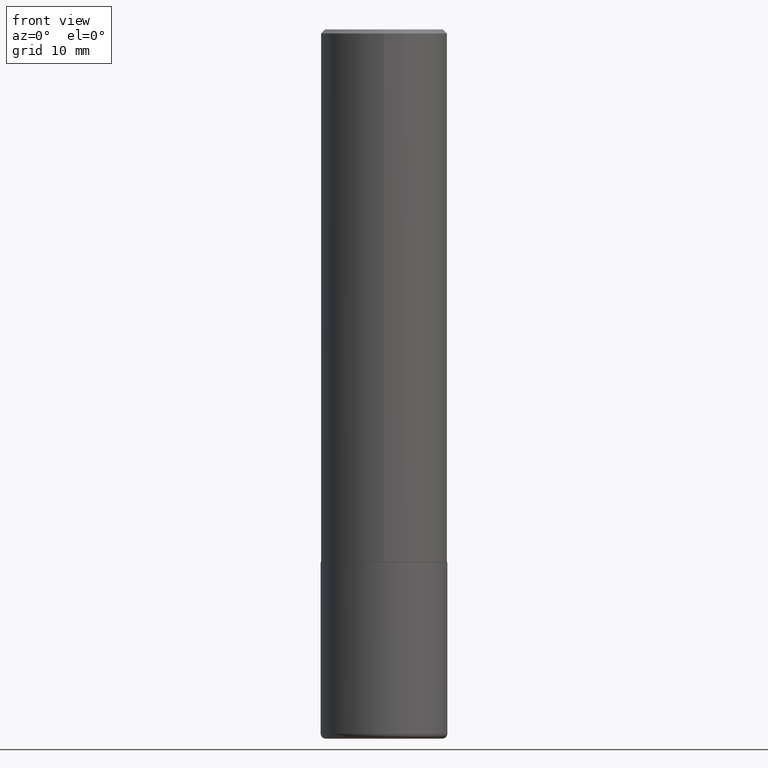
[diagram: clean part render]
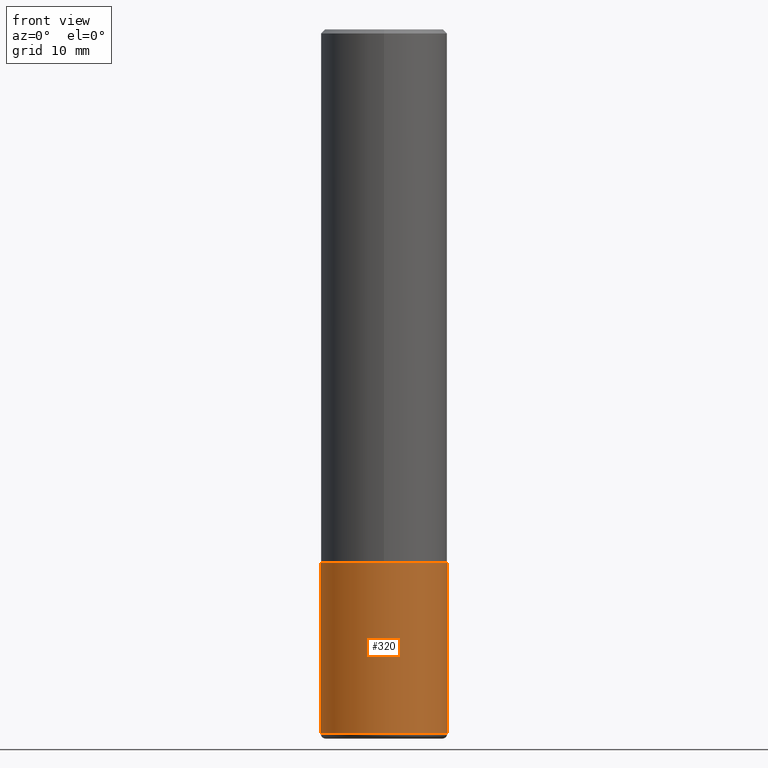
[diagram: same view with one face highlighted and labeled with its STEP entity id]
A machine part, front view. The second image highlights one B-rep face of the part: STEP entity #320.
In plain terms, the highlighted cylindrical surface (partial cylindrical patch) has radius 7.9375 mm, axis along (-0, 0, 1).
Its self-contained STEP definition (entity closure, byte-faithful):
#8 = AXIS2_PLACEMENT_3D ( 'NONE', #265, #163, #38 ) ;
#9 = FACE_OUTER_BOUND ( 'NONE', #12, .T. ) ;
#12 = EDGE_LOOP ( 'NONE', ( #141, #329, #174, #242 ) ) ;
#13 = VECTOR ( 'NONE', #416, 39.37007874015748143 ) ;
#15 = VERTEX_POINT ( 'NONE', #120 ) ;
#38 = DIRECTION ( 'NONE',  ( 1.000000000000000000, -6.982962677686269077E-15, 0.000000000000000000 ) ) ;
#53 = CIRCLE ( 'NONE', #8, 0.3125000000000000000 ) ;
#59 = EDGE_CURVE ( 'NONE', #15, #181, #286, .T. ) ;
#88 = CARTESIAN_POINT ( 'NONE',  ( 8.498004101493349225E-29, -1.213289765247992785E-14, -3.474999999999999201 ) ) ;
#104 = CARTESIAN_POINT ( 'NONE',  ( -0.3125000000000000000, -8.437300737568386669E-15, -2.629999999999999893 ) ) ;
#110 = VECTOR ( 'NONE', #390, 39.37007874015748143 ) ;
#119 = EDGE_CURVE ( 'NONE', #283, #15, #388, .T. ) ;
#120 = CARTESIAN_POINT ( 'NONE',  ( 0.3124999999999997224, -1.431507348925688462E-14, -3.474999999999999201 ) ) ;
#121 = DIRECTION ( 'NONE',  ( -2.445468806185136597E-29, 3.491481338843145583E-15, 1.000000000000000000 ) ) ;
#129 = CARTESIAN_POINT ( 'NONE',  ( 0.3125000000000000000, -2.182175836776958347E-15, 1.523805242436230075E-29 ) ) ;
#141 = ORIENTED_EDGE ( 'NONE', *, *, #258, .F. ) ;
#162 = AXIS2_PLACEMENT_3D ( 'NONE', #232, #165, #234 ) ;
#163 = DIRECTION ( 'NONE',  ( -2.445468806185136597E-29, 3.491481338843145583E-15, 1.000000000000000000 ) ) ;
#165 = DIRECTION ( 'NONE',  ( -2.445468806185136597E-29, 3.491481338843145583E-15, 1.000000000000000000 ) ) ;
#174 = ORIENTED_EDGE ( 'NONE', *, *, #59, .T. ) ;
#175 = AXIS2_PLACEMENT_3D ( 'NONE', #88, #121, #322 ) ;
#181 = VERTEX_POINT ( 'NONE', #250 ) ;
#200 = CARTESIAN_POINT ( 'NONE',  ( -0.3124999999999997224, -9.912451603229616350E-15, -3.474999999999999201 ) ) ;
#232 = CARTESIAN_POINT ( 'NONE',  ( 0.000000000000000000, 0.000000000000000000, 0.000000000000000000 ) ) ;
#234 = DIRECTION ( 'NONE',  ( 1.000000000000000000, -6.982962677686266711E-15, 4.876176775795936353E-29 ) ) ;
#242 = ORIENTED_EDGE ( 'NONE', *, *, #243, .F. ) ;
#243 = EDGE_CURVE ( 'NONE', #372, #181, #53, .T. ) ;
#250 = CARTESIAN_POINT ( 'NONE',  ( 0.3125000000000000000, -1.136477175793443157E-14, -2.629999999999999893 ) ) ;
#258 = EDGE_CURVE ( 'NONE', #283, #372, #393, .T. ) ;
#265 = CARTESIAN_POINT ( 'NONE',  ( 6.431582960266909339E-29, -9.182595921157471648E-15, -2.629999999999999893 ) ) ;
#266 = CYLINDRICAL_SURFACE ( 'NONE', #162, 0.3125000000000000000 ) ;
#283 = VERTEX_POINT ( 'NONE', #200 ) ;
#286 = LINE ( 'NONE', #129, #13 ) ;
#320 = ADVANCED_FACE ( 'NONE', ( #9 ), #266, .T. ) ;
#322 = DIRECTION ( 'NONE',  ( 1.000000000000000000, -6.982962677686264344E-15, 0.000000000000000000 ) ) ;
#328 = CARTESIAN_POINT ( 'NONE',  ( -0.3125000000000000000, 2.220446049250313081E-15, -1.537167215704658232E-29 ) ) ;
#329 = ORIENTED_EDGE ( 'NONE', *, *, #119, .T. ) ;
#372 = VERTEX_POINT ( 'NONE', #104 ) ;
#388 = CIRCLE ( 'NONE', #175, 0.3124999999999999445 ) ;
#390 = DIRECTION ( 'NONE',  ( -2.445468806185136877E-29, 3.491481338843145188E-15, 1.000000000000000000 ) ) ;
#393 = LINE ( 'NONE', #328, #110 ) ;
#416 = DIRECTION ( 'NONE',  ( -2.445468806185136877E-29, 3.491481338843145188E-15, 1.000000000000000000 ) ) ;